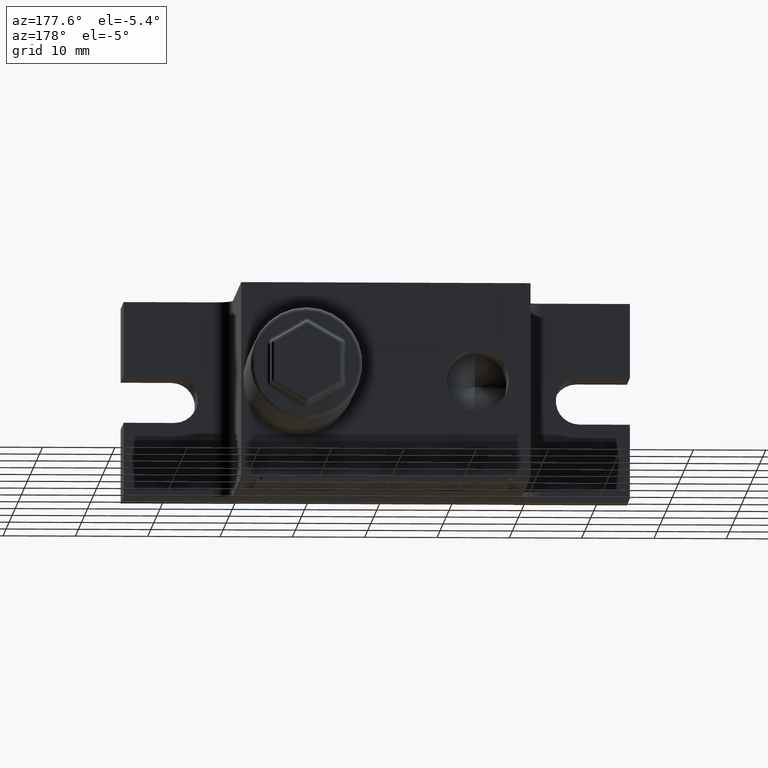
[diagram: clean part render]
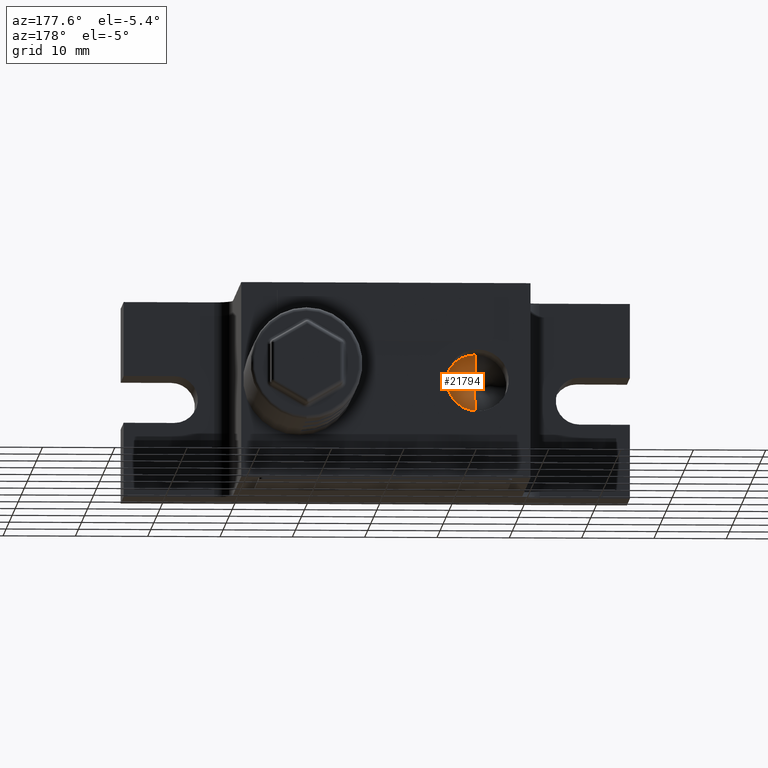
[diagram: same view with one face highlighted and labeled with its STEP entity id]
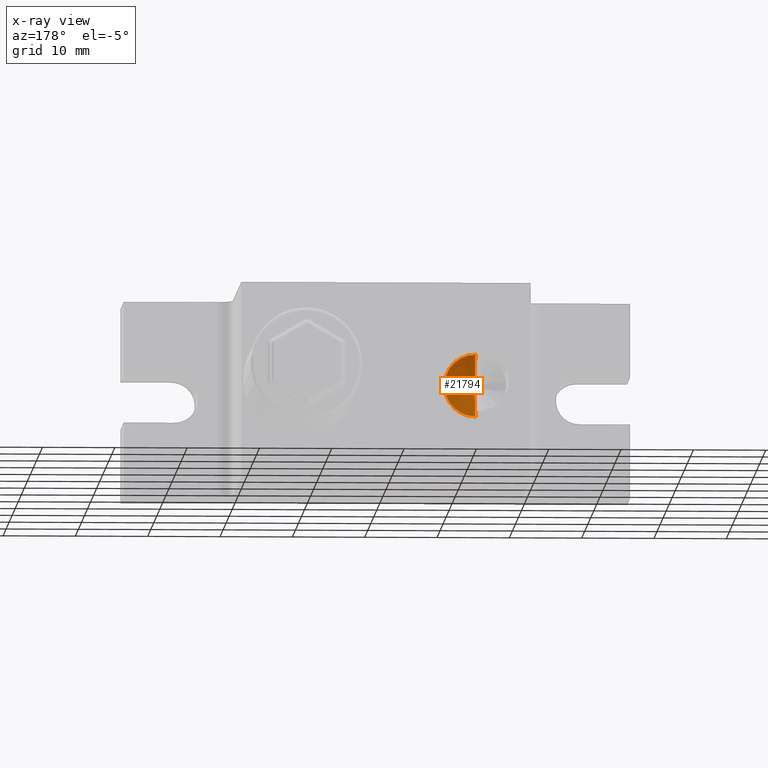
[diagram: x-ray of the same camera — body ghosted, the highlighted face saturated]
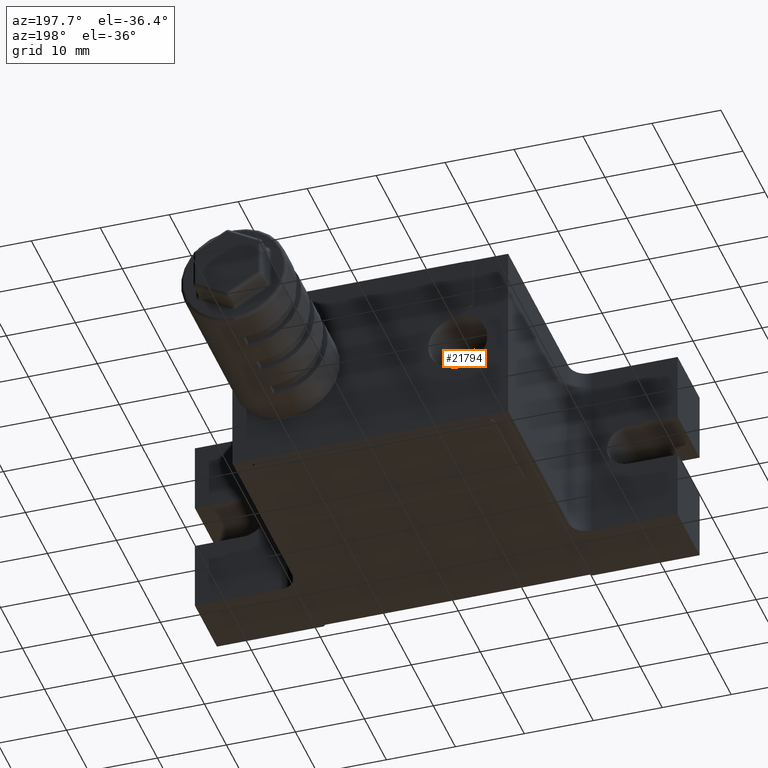
[diagram: same view with one face highlighted and labeled with its STEP entity id]
A machine part, auxiliary view. The second image highlights one B-rep face of the part: STEP entity #21794.
The next image is the same camera in x-ray: the body ghosted, the highlighted face saturated — about 0% of this face is hidden behind the body in this view.
A second angle (auxiliary view) of the same face is appended — the face is thin or edge-on in the first view.
In plain terms, the highlighted conical surface has half-angle 59 deg.
Its self-contained STEP definition (entity closure, byte-faithful):
#446 = CARTESIAN_POINT ( 'NONE',  ( -12.69999999999999900, 12.00000000000000000, 0.0000000000000000000 ) ) ;
#482 = CARTESIAN_POINT ( 'NONE',  ( -12.69999999999999900, 12.00000000000000000, 0.0000000000000000000 ) ) ;
#837 = CARTESIAN_POINT ( 'NONE',  ( -12.69999999999999900, 9.426513968704950800, 0.0000000000000000000 ) ) ;
#1190 = ORIENTED_EDGE ( 'NONE', *, *, #14087, .T. ) ;
#1922 = DIRECTION ( 'NONE',  ( 1.049727191138618200E-016, 0.5150380749100549300, -0.8571673007021118900 ) ) ;
#2282 = DIRECTION ( 'NONE',  ( 0.0000000000000000000, 1.000000000000000000, 0.0000000000000000000 ) ) ;
#3455 = CARTESIAN_POINT ( 'NONE',  ( -12.69999999999999900, 12.00000000000000000, 4.283000000000000400 ) ) ;
#3692 = CARTESIAN_POINT ( 'NONE',  ( -12.69999999999999900, 12.00000000000000000, 4.283000000000000400 ) ) ;
#3983 = DIRECTION ( 'NONE',  ( 0.0000000000000000000, 0.0000000000000000000, 1.000000000000000000 ) ) ;
#3995 = ORIENTED_EDGE ( 'NONE', *, *, #21110, .F. ) ;
#4338 = VERTEX_POINT ( 'NONE', #3455 ) ;
#7879 = DIRECTION ( 'NONE',  ( 0.0000000000000000000, 0.0000000000000000000, 1.000000000000000000 ) ) ;
#8381 = EDGE_LOOP ( 'NONE', ( #3995, #17870, #1190 ) ) ;
#9252 = VECTOR ( 'NONE', #20332, 999.9999999999998900 ) ;
#9796 = DIRECTION ( 'NONE',  ( 0.0000000000000000000, 1.000000000000000000, 0.0000000000000000000 ) ) ;
#10683 = LINE ( 'NONE', #12657, #13538 ) ;
#11206 = CONICAL_SURFACE ( 'NONE', #19532, 4.283000000000000400, 1.029744258676653600 ) ;
#12410 = VERTEX_POINT ( 'NONE', #837 ) ;
#12657 = CARTESIAN_POINT ( 'NONE',  ( -12.69999999999999900, 12.00000000000000000, -4.283000000000000400 ) ) ;
#13538 = VECTOR ( 'NONE', #1922, 999.9999999999998900 ) ;
#14068 = LINE ( 'NONE', #3692, #9252 ) ;
#14087 = EDGE_CURVE ( 'NONE', #4338, #14776, #17643, .T. ) ;
#14776 = VERTEX_POINT ( 'NONE', #18841 ) ;
#17515 = EDGE_CURVE ( 'NONE', #12410, #4338, #14068, .T. ) ;
#17643 = CIRCLE ( 'NONE', #21304, 4.283000000000000400 ) ;
#17870 = ORIENTED_EDGE ( 'NONE', *, *, #17515, .T. ) ;
#18841 = CARTESIAN_POINT ( 'NONE',  ( -12.69999999999999900, 12.00000000000000000, -4.283000000000000400 ) ) ;
#19532 = AXIS2_PLACEMENT_3D ( 'NONE', #446, #2282, #3983 ) ;
#20108 = FACE_OUTER_BOUND ( 'NONE', #8381, .T. ) ;
#20332 = DIRECTION ( 'NONE',  ( 0.0000000000000000000, 0.5150380749100549300, 0.8571673007021118900 ) ) ;
#21110 = EDGE_CURVE ( 'NONE', #12410, #14776, #10683, .T. ) ;
#21304 = AXIS2_PLACEMENT_3D ( 'NONE', #482, #9796, #7879 ) ;
#21794 = ADVANCED_FACE ( 'NONE', ( #20108 ), #11206, .F. ) ;